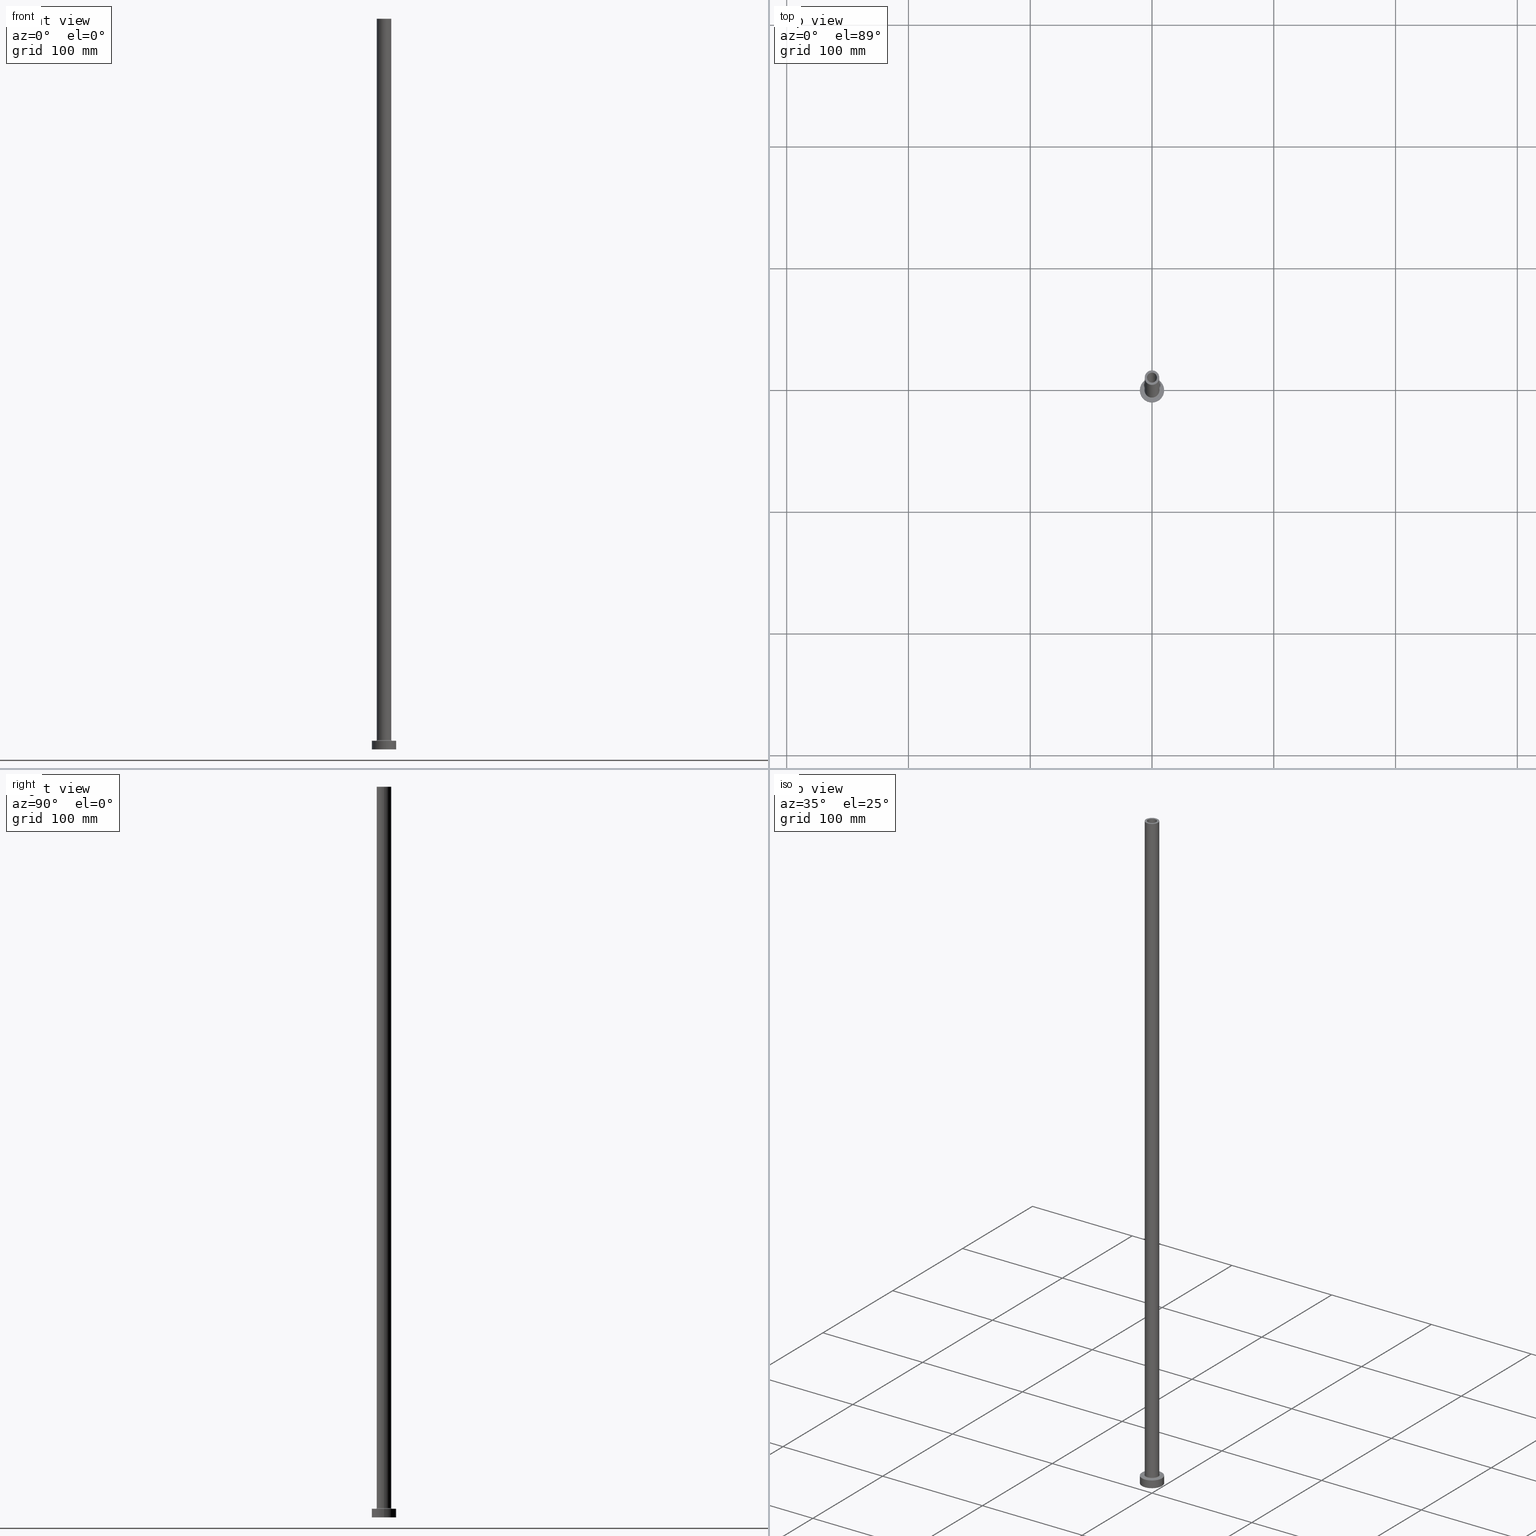
[diagram: canonical four-view strip — front | top / right | iso, engineering-drawing reading convention]
A machine part, canonical four-view strip (front | top / right | iso — engineering-drawing reading convention). The complete STEP part file that produces these views, byte-faithful:
ISO-10303-21;
HEADER;
FILE_DESCRIPTION (( 'STEP AP203' ),
    '1' );
FILE_NAME ('ef7f.STEP',
    '2023-02-13T07:38:45',
    ( '' ),
    ( '' ),
    'SwSTEP 2.0',
    'SolidWorks 2019',
    '' );
FILE_SCHEMA (( 'CONFIG_CONTROL_DESIGN' ));
ENDSEC;

DATA;
#1 = VERTEX_POINT ( 'NONE', #70 ) ;
#2 = EDGE_LOOP ( 'NONE', ( #317, #254, #249, #282 ) ) ;
#3 = PERSON_AND_ORGANIZATION ( #419, #97 ) ;
#4 = ADVANCED_FACE ( 'NONE', ( #33, #148 ), #28, .T. ) ;
#5 = EDGE_CURVE ( 'NONE', #219, #421, #349, .T. ) ;
#6 = VERTEX_POINT ( 'NONE', #44 ) ;
#7 = CARTESIAN_POINT ( 'NONE',  ( 0.000000000000000000, 0.000000000000000000, 567.0208152801711776 ) ) ;
#8 = ORIENTED_EDGE ( 'NONE', *, *, #441, .T. ) ;
#9 = CIRCLE ( 'NONE', #418, 6.700000000000001066 ) ;
#10 = DIRECTION ( 'NONE',  ( 0.000000000000000000, 0.000000000000000000, -1.000000000000000000 ) ) ;
#11 = DIRECTION ( 'NONE',  ( -0.000000000000000000, -0.000000000000000000, -1.000000000000000000 ) ) ;
#12 = CARTESIAN_POINT ( 'NONE',  ( 0.000000000000000000, 0.000000000000000000, 7.700000000000040146 ) ) ;
#13 = CC_DESIGN_APPROVAL ( #210, ( #357 ) ) ;
#14 = AXIS2_PLACEMENT_3D ( 'NONE', #132, #453, #161 ) ;
#15 = CARTESIAN_POINT ( 'NONE',  ( 0.000000000000000000, 0.000000000000000000, 7.000000000000000000 ) ) ;
#16 = CARTESIAN_POINT ( 'NONE',  ( -10.00000000000000000, 0.000000000000000000, 7.000000000000000000 ) ) ;
#17 = FACE_OUTER_BOUND ( 'NONE', #457, .T. ) ;
#18 = DIRECTION ( 'NONE',  ( -0.000000000000000000, -0.000000000000000000, -1.000000000000000000 ) ) ;
#19 = DIRECTION ( 'NONE',  ( 0.000000000000000000, 0.000000000000000000, 1.000000000000000000 ) ) ;
#20 = DIRECTION ( 'NONE',  ( 0.000000000000000000, 0.000000000000000000, 1.000000000000000000 ) ) ;
#21 = AXIS2_PLACEMENT_3D ( 'NONE', #456, #459, #78 ) ;
#22 = CYLINDRICAL_SURFACE ( 'NONE', #182, 4.099999999999999645 ) ;
#23 = ADVANCED_FACE ( 'NONE', ( #443 ), #295, .T. ) ;
#24 = CARTESIAN_POINT ( 'NONE',  ( 0.000000000000000000, 0.000000000000000000, 600.0000000000000000 ) ) ;
#25 = CARTESIAN_POINT ( 'NONE',  ( 0.000000000000000000, 0.000000000000000000, 7.000000000000000000 ) ) ;
#26 = ORIENTED_EDGE ( 'NONE', *, *, #407, .F. ) ;
#27 = ORIENTED_EDGE ( 'NONE', *, *, #156, .F. ) ;
#28 = PLANE ( 'NONE',  #40 ) ;
#29 = APPROVAL_PERSON_ORGANIZATION ( #197, #452, #50 ) ;
#30 = VERTEX_POINT ( 'NONE', #294 ) ;
#31 = AXIS2_PLACEMENT_3D ( 'NONE', #90, #412, #277 ) ;
#32 = CC_DESIGN_PERSON_AND_ORGANIZATION_ASSIGNMENT ( #3, #221, ( #357 ) ) ;
#33 = FACE_BOUND ( 'NONE', #227, .T. ) ;
#34 = APPROVAL_DATE_TIME ( #225, #210 ) ;
#35 = DIRECTION ( 'NONE',  ( 0.000000000000000000, 0.000000000000000000, 1.000000000000000000 ) ) ;
#36 = SECURITY_CLASSIFICATION_LEVEL ( 'unclassified' ) ;
#37 = EDGE_CURVE ( 'NONE', #387, #244, #315, .T. ) ;
#38 = CARTESIAN_POINT ( 'NONE',  ( 0.000000000000000000, 0.000000000000000000, 7.000000000000000000 ) ) ;
#39 = VERTEX_POINT ( 'NONE', #73 ) ;
#40 = AXIS2_PLACEMENT_3D ( 'NONE', #289, #319, #60 ) ;
#41 = CARTESIAN_POINT ( 'NONE',  ( -10.00000000000000000, 0.000000000000000000, 7.000000000000000000 ) ) ;
#42 = CARTESIAN_POINT ( 'NONE',  ( -4.250000000000000000, 0.000000000000000000, 0.000000000000000000 ) ) ;
#43 = FACE_BOUND ( 'NONE', #151, .T. ) ;
#44 = CARTESIAN_POINT ( 'NONE',  ( 6.000000000000000888, 7.347880794884120722E-16, 7.700000000000040146 ) ) ;
#45 = CARTESIAN_POINT ( 'NONE',  ( 6.000000000000000888, 7.347880794884120722E-16, 600.0000000000000000 ) ) ;
#46 = DIRECTION ( 'NONE',  ( 0.000000000000000000, 0.000000000000000000, -1.000000000000000000 ) ) ;
#47 = AXIS2_PLACEMENT_3D ( 'NONE', #159, #198, #88 ) ;
#48 = CC_DESIGN_DATE_AND_TIME_ASSIGNMENT ( #149, #93, ( #137 ) ) ;
#49 = APPLICATION_PROTOCOL_DEFINITION ( 'international standard', 'config_control_design', 1994, #215 ) ;
#50 = APPROVAL_ROLE ( '' ) ;
#51 = DIRECTION ( 'NONE',  ( 0.000000000000000000, 0.000000000000000000, -1.000000000000000000 ) ) ;
#52 = EDGE_CURVE ( 'NONE', #290, #39, #98, .T. ) ;
#53 = CARTESIAN_POINT ( 'NONE',  ( 0.000000000000000000, 0.000000000000000000, 600.0000000000000000 ) ) ;
#54 = DIRECTION ( 'NONE',  ( 0.000000000000000000, 0.000000000000000000, -1.000000000000000000 ) ) ;
#55 = EDGE_CURVE ( 'NONE', #421, #219, #190, .T. ) ;
#56 = CIRCLE ( 'NONE', #314, 4.099999999999999645 ) ;
#57 = DIRECTION ( 'NONE',  ( 0.000000000000000000, 0.000000000000000000, 1.000000000000000000 ) ) ;
#58 = DATE_AND_TIME ( #329, #181 ) ;
#59 = PLANE ( 'NONE',  #455 ) ;
#60 = DIRECTION ( 'NONE',  ( 1.000000000000000000, 0.000000000000000000, -0.000000000000000000 ) ) ;
#61 = VECTOR ( 'NONE', #10, 1000.000000000000000 ) ;
#62 = EDGE_LOOP ( 'NONE', ( #77, #360 ) ) ;
#63 = ORIENTED_EDGE ( 'NONE', *, *, #192, .T. ) ;
#64 = DIRECTION ( 'NONE',  ( -0.000000000000000000, -0.000000000000000000, -1.000000000000000000 ) ) ;
#65 = EDGE_LOOP ( 'NONE', ( #145, #220, #281, #287 ) ) ;
#66 = DIRECTION ( 'NONE',  ( -1.000000000000000000, 0.000000000000000000, 0.000000000000000000 ) ) ;
#67 = ORIENTED_EDGE ( 'NONE', *, *, #87, .T. ) ;
#68 = CC_DESIGN_PERSON_AND_ORGANIZATION_ASSIGNMENT ( #233, #85, ( #170 ) ) ;
#69 = VECTOR ( 'NONE', #345, 1000.000000000000000 ) ;
#70 = CARTESIAN_POINT ( 'NONE',  ( -4.099999999999999645, 0.000000000000000000, 600.0000000000000000 ) ) ;
#71 = AXIS2_PLACEMENT_3D ( 'NONE', #25, #270, #86 ) ;
#72 = APPROVAL_DATE_TIME ( #112, #452 ) ;
#73 = CARTESIAN_POINT ( 'NONE',  ( -4.250000000000000000, 0.000000000000000000, 554.9999999999998863 ) ) ;
#74 = ORIENTED_EDGE ( 'NONE', *, *, #101, .T. ) ;
#75 = APPROVAL_ROLE ( '' ) ;
#76 = DIRECTION ( 'NONE',  ( 0.000000000000000000, 0.000000000000000000, -1.000000000000000000 ) ) ;
#77 = ORIENTED_EDGE ( 'NONE', *, *, #262, .F. ) ;
#78 = DIRECTION ( 'NONE',  ( 1.000000000000000000, 0.000000000000000000, 0.000000000000000000 ) ) ;
#79 = VECTOR ( 'NONE', #238, 1000.000000000000000 ) ;
#80 = DIRECTION ( 'NONE',  ( 0.000000000000000000, 0.000000000000000000, -1.000000000000000000 ) ) ;
#81 =( LENGTH_UNIT ( ) NAMED_UNIT ( * ) SI_UNIT ( .MILLI., .METRE. ) );
#82 = DIRECTION ( 'NONE',  ( 1.000000000000000000, 0.000000000000000000, 0.000000000000000000 ) ) ;
#83 = PLANE ( 'NONE',  #47 ) ;
#84 = CARTESIAN_POINT ( 'NONE',  ( 0.000000000000000000, 0.000000000000000000, 600.0000000000000000 ) ) ;
#85 = PERSON_AND_ORGANIZATION_ROLE ( 'design_owner' ) ;
#86 = DIRECTION ( 'NONE',  ( 1.000000000000000000, 0.000000000000000000, 0.000000000000000000 ) ) ;
#87 = EDGE_CURVE ( 'NONE', #6, #423, #397, .T. ) ;
#88 = DIRECTION ( 'NONE',  ( 1.000000000000000000, 0.000000000000000000, -0.000000000000000000 ) ) ;
#89 = EDGE_CURVE ( 'NONE', #387, #6, #119, .T. ) ;
#90 = CARTESIAN_POINT ( 'NONE',  ( 0.000000000000000000, 0.000000000000000000, 0.000000000000000000 ) ) ;
#91 = CARTESIAN_POINT ( 'NONE',  ( 10.00000000000000000, 1.224646799147353256E-15, 7.000000000000000000 ) ) ;
#92 = DIRECTION ( 'NONE',  ( -0.000000000000000000, -0.000000000000000000, -1.000000000000000000 ) ) ;
#93 = DATE_TIME_ROLE ( 'creation_date' ) ;
#94 = AXIS2_PLACEMENT_3D ( 'NONE', #157, #115, #82 ) ;
#95 = DIRECTION ( 'NONE',  ( -1.000000000000000000, 0.000000000000000000, 0.000000000000000000 ) ) ;
#96 = ORIENTED_EDGE ( 'NONE', *, *, #205, .T. ) ;
#97 = ORGANIZATION ( 'NEUR�EN�', 'NEUR�EN�', '' ) ;
#98 = CIRCLE ( 'NONE', #94, 4.250000000000000000 ) ;
#99 = ORIENTED_EDGE ( 'NONE', *, *, #222, .T. ) ;
#100 = CARTESIAN_POINT ( 'NONE',  ( 0.000000000000000000, 0.000000000000000000, 600.0000000000000000 ) ) ;
#101 = EDGE_CURVE ( 'NONE', #436, #366, #337, .T. ) ;
#102 = ORIENTED_EDGE ( 'NONE', *, *, #304, .T. ) ;
#103 = EDGE_LOOP ( 'NONE', ( #27, #138 ) ) ;
#104 = PERSON_AND_ORGANIZATION ( #419, #97 ) ;
#105 = ORIENTED_EDGE ( 'NONE', *, *, #246, .T. ) ;
#106 = ORIENTED_EDGE ( 'NONE', *, *, #37, .T. ) ;
#107 = APPROVAL_STATUS ( 'not_yet_approved' ) ;
#108 = VECTOR ( 'NONE', #447, 1000.000000000000000 ) ;
#109 = CARTESIAN_POINT ( 'NONE',  ( -4.099999999999999645, 0.000000000000000000, 600.0000000000000000 ) ) ;
#110 = CIRCLE ( 'NONE', #388, 6.000000000000000888 ) ;
#111 = ORIENTED_EDGE ( 'NONE', *, *, #268, .T. ) ;
#112 = DATE_AND_TIME ( #396, #163 ) ;
#113 = DIRECTION ( 'NONE',  ( 1.000000000000000000, 0.000000000000000000, 0.000000000000000000 ) ) ;
#114 = CARTESIAN_POINT ( 'NONE',  ( 0.000000000000000000, 0.000000000000000000, 600.0000000000000000 ) ) ;
#115 = DIRECTION ( 'NONE',  ( 0.000000000000000000, 0.000000000000000000, 1.000000000000000000 ) ) ;
#116 = CIRCLE ( 'NONE', #179, 6.000000000000000888 ) ;
#117 = CARTESIAN_POINT ( 'NONE',  ( 0.000000000000000000, 0.000000000000000000, 554.9999999999998863 ) ) ;
#118 = APPROVAL_PERSON_ORGANIZATION ( #429, #340, #326 ) ;
#119 = CIRCLE ( 'NONE', #257, 6.000000000000000888 ) ;
#120 = DIRECTION ( 'NONE',  ( 1.224646799147353207E-16, 1.000000000000000000, -0.000000000000000000 ) ) ;
#121 = CC_DESIGN_PERSON_AND_ORGANIZATION_ASSIGNMENT ( #104, #259, ( #137 ) ) ;
#122 = DIRECTION ( 'NONE',  ( 1.000000000000000000, 0.000000000000000000, 0.000000000000000000 ) ) ;
#123 = CYLINDRICAL_SURFACE ( 'NONE', #415, 10.00000000000000000 ) ;
#124 = DIRECTION ( 'NONE',  ( 0.000000000000000000, 0.000000000000000000, 1.000000000000000000 ) ) ;
#125 = CARTESIAN_POINT ( 'NONE',  ( 4.099999999999999645, 5.021051876504147385E-16, 600.0000000000000000 ) ) ;
#126 =( GEOMETRIC_REPRESENTATION_CONTEXT ( 3 ) GLOBAL_UNCERTAINTY_ASSIGNED_CONTEXT ( ( #174 ) ) GLOBAL_UNIT_ASSIGNED_CONTEXT ( ( #81, #203, #164 ) ) REPRESENTATION_CONTEXT ( 'NONE', 'WORKASPACE' ) );
#127 = AXIS2_PLACEMENT_3D ( 'NONE', #38, #19, #381 ) ;
#128 = PRODUCT_RELATED_PRODUCT_CATEGORY ( 'detail', '', ( #170 ) ) ;
#129 = DIRECTION ( 'NONE',  ( 1.000000000000000000, 0.000000000000000000, 0.000000000000000000 ) ) ;
#130 = CARTESIAN_POINT ( 'NONE',  ( 4.250000000000000000, 5.204748896376250699E-16, 554.9999999999998863 ) ) ;
#131 = CARTESIAN_POINT ( 'NONE',  ( 0.000000000000000000, 0.000000000000000000, 0.000000000000000000 ) ) ;
#132 = CARTESIAN_POINT ( 'NONE',  ( 0.000000000000000000, 0.000000000000000000, 0.000000000000000000 ) ) ;
#133 = CARTESIAN_POINT ( 'NONE',  ( 6.700000000000001066, 0.000000000000000000, 7.000000000000020428 ) ) ;
#134 = DIRECTION ( 'NONE',  ( 0.000000000000000000, 0.000000000000000000, 1.000000000000000000 ) ) ;
#135 = AXIS2_PLACEMENT_3D ( 'NONE', #266, #35, #292 ) ;
#136 = DIRECTION ( 'NONE',  ( 0.000000000000000000, 0.000000000000000000, 1.000000000000000000 ) ) ;
#137 = PRODUCT_DEFINITION ( 'NEZN�M�', '', #416, #391 ) ;
#138 = ORIENTED_EDGE ( 'NONE', *, *, #192, .F. ) ;
#139 = ORIENTED_EDGE ( 'NONE', *, *, #52, .F. ) ;
#140 = ORIENTED_EDGE ( 'NONE', *, *, #222, .F. ) ;
#141 = CC_DESIGN_APPROVAL ( #452, ( #137 ) ) ;
#142 = AXIS2_PLACEMENT_3D ( 'NONE', #100, #352, #437 ) ;
#143 = ADVANCED_FACE ( 'NONE', ( #368 ), #369, .F. ) ;
#144 = CIRCLE ( 'NONE', #322, 10.00000000000000000 ) ;
#145 = ORIENTED_EDGE ( 'NONE', *, *, #264, .F. ) ;
#146 = EDGE_LOOP ( 'NONE', ( #427, #106, #207, #355 ) ) ;
#147 = ORIENTED_EDGE ( 'NONE', *, *, #155, .F. ) ;
#148 = FACE_OUTER_BOUND ( 'NONE', #252, .T. ) ;
#149 = DATE_AND_TIME ( #291, #320 ) ;
#150 = AXIS2_PLACEMENT_3D ( 'NONE', #440, #332, #188 ) ;
#151 = EDGE_LOOP ( 'NONE', ( #176, #351 ) ) ;
#152 = CARTESIAN_POINT ( 'NONE',  ( 0.000000000000000000, 0.000000000000000000, 0.000000000000000000 ) ) ;
#153 = FACE_OUTER_BOUND ( 'NONE', #146, .T. ) ;
#154 = ADVANCED_FACE ( 'NONE', ( #226 ), #260, .T. ) ;
#155 = EDGE_CURVE ( 'NONE', #1, #219, #373, .T. ) ;
#156 = EDGE_CURVE ( 'NONE', #30, #213, #283, .T. ) ;
#157 = CARTESIAN_POINT ( 'NONE',  ( 0.000000000000000000, 0.000000000000000000, 554.9999999999998863 ) ) ;
#158 = VECTOR ( 'NONE', #51, 1000.000000000000000 ) ;
#159 = CARTESIAN_POINT ( 'NONE',  ( 0.000000000000000000, 0.000000000000000000, 554.9999999999998863 ) ) ;
#160 = DIRECTION ( 'NONE',  ( 1.000000000000000000, 0.000000000000000000, 0.000000000000000000 ) ) ;
#161 = DIRECTION ( 'NONE',  ( 1.000000000000000000, 0.000000000000000000, 0.000000000000000000 ) ) ;
#162 = CARTESIAN_POINT ( 'NONE',  ( 0.000000000000000000, 0.000000000000000000, 7.700000000000040146 ) ) ;
#163 = LOCAL_TIME ( 8, 38, 45.00000000000000000, #448 ) ;
#164 =( NAMED_UNIT ( * ) SI_UNIT ( $, .STERADIAN. ) SOLID_ANGLE_UNIT ( ) );
#165 = CARTESIAN_POINT ( 'NONE',  ( 0.000000000000000000, 0.000000000000000000, 600.0000000000000000 ) ) ;
#166 = APPLICATION_CONTEXT ( 'configuration controlled 3d designs of mechanical parts and assemblies' ) ;
#167 = LINE ( 'NONE', #16, #431 ) ;
#168 = DIRECTION ( 'NONE',  ( 0.000000000000000000, 0.000000000000000000, 1.000000000000000000 ) ) ;
#169 = CLOSED_SHELL ( 'NONE', ( #228, #143, #208, #154, #323, #23, #4, #298, #275, #354, #253, #240, #370, #306 ) ) ;
#170 = PRODUCT ( 'ef7f', 'ef7f', '', ( #451 ) ) ;
#171 = VERTEX_POINT ( 'NONE', #42 ) ;
#172 = CARTESIAN_POINT ( 'NONE',  ( 0.000000000000000000, 0.000000000000000000, 7.000000000000000000 ) ) ;
#173 = ORIENTED_EDGE ( 'NONE', *, *, #384, .T. ) ;
#174 = UNCERTAINTY_MEASURE_WITH_UNIT (LENGTH_MEASURE( 1.000000000000000082E-05 ), #81, 'distance_accuracy_value', 'NONE');
#175 = EDGE_CURVE ( 'NONE', #39, #171, #362, .T. ) ;
#176 = ORIENTED_EDGE ( 'NONE', *, *, #5, .T. ) ;
#177 = PLANE ( 'NONE',  #454 ) ;
#178 = ORIENTED_EDGE ( 'NONE', *, *, #346, .F. ) ;
#179 = AXIS2_PLACEMENT_3D ( 'NONE', #24, #299, #309 ) ;
#180 = COORDINATED_UNIVERSAL_TIME_OFFSET ( 1, 0, .AHEAD. ) ;
#181 = LOCAL_TIME ( 8, 38, 45.00000000000000000, #312 ) ;
#182 = AXIS2_PLACEMENT_3D ( 'NONE', #165, #54, #414 ) ;
#183 = EDGE_LOOP ( 'NONE', ( #140, #173, #63, #284 ) ) ;
#184 = EDGE_LOOP ( 'NONE', ( #363, #428, #394, #147 ) ) ;
#185 = VERTEX_POINT ( 'NONE', #231 ) ;
#186 = SHAPE_DEFINITION_REPRESENTATION ( #350, #446 ) ;
#187 = CC_DESIGN_DATE_AND_TIME_ASSIGNMENT ( #426, #461, ( #357 ) ) ;
#188 = DIRECTION ( 'NONE',  ( -1.000000000000000000, 0.000000000000000000, 0.000000000000000000 ) ) ;
#189 = DIRECTION ( 'NONE',  ( 1.000000000000000000, 0.000000000000000000, 0.000000000000000000 ) ) ;
#190 = CIRCLE ( 'NONE', #413, 4.099999999999999645 ) ;
#191 = DIRECTION ( 'NONE',  ( 1.000000000000000000, 0.000000000000000000, 0.000000000000000000 ) ) ;
#192 = EDGE_CURVE ( 'NONE', #213, #30, #144, .T. ) ;
#193 = DIRECTION ( 'NONE',  ( 0.000000000000000000, 0.000000000000000000, 1.000000000000000000 ) ) ;
#194 = CARTESIAN_POINT ( 'NONE',  ( 0.000000000000000000, 0.000000000000000000, 554.9999999999998863 ) ) ;
#195 = CARTESIAN_POINT ( 'NONE',  ( 0.000000000000000000, 0.000000000000000000, 0.000000000000000000 ) ) ;
#196 = CIRCLE ( 'NONE', #14, 4.250000000000000000 ) ;
#197 = PERSON_AND_ORGANIZATION ( #419, #97 ) ;
#198 = DIRECTION ( 'NONE',  ( 0.000000000000000000, 0.000000000000000000, 1.000000000000000000 ) ) ;
#199 = DIRECTION ( 'NONE',  ( 1.000000000000000000, 0.000000000000000000, -0.000000000000000000 ) ) ;
#200 = DIRECTION ( 'NONE',  ( 1.000000000000000000, 0.000000000000000000, 0.000000000000000000 ) ) ;
#201 = DIRECTION ( 'NONE',  ( 1.000000000000000000, 0.000000000000000000, 0.000000000000000000 ) ) ;
#202 = AXIS2_PLACEMENT_3D ( 'NONE', #297, #223, #331 ) ;
#203 =( NAMED_UNIT ( * ) PLANE_ANGLE_UNIT ( ) SI_UNIT ( $, .RADIAN. ) );
#204 = FACE_OUTER_BOUND ( 'NONE', #103, .T. ) ;
#205 = EDGE_CURVE ( 'NONE', #423, #244, #405, .T. ) ;
#206 = CARTESIAN_POINT ( 'NONE',  ( -6.000000000000000888, 0.000000000000000000, 600.0000000000000000 ) ) ;
#207 = ORIENTED_EDGE ( 'NONE', *, *, #205, .F. ) ;
#208 = ADVANCED_FACE ( 'NONE', ( #153 ), #267, .F. ) ;
#209 = TOROIDAL_SURFACE ( 'NONE', #241, 6.700000000000001066, 0.6999999999999999556 ) ;
#210 = APPROVAL ( #344, 'NEUR�EN�' ) ;
#211 = ORIENTED_EDGE ( 'NONE', *, *, #89, .T. ) ;
#212 = VERTEX_POINT ( 'NONE', #365 ) ;
#213 = VERTEX_POINT ( 'NONE', #398 ) ;
#214 = CALENDAR_DATE ( 2023, 13, 2 ) ;
#215 = APPLICATION_CONTEXT ( 'configuration controlled 3d designs of mechanical parts and assemblies' ) ;
#216 = EDGE_LOOP ( 'NONE', ( #224, #139 ) ) ;
#217 = CC_DESIGN_APPROVAL ( #340, ( #416 ) ) ;
#218 = AXIS2_PLACEMENT_3D ( 'NONE', #272, #383, #235 ) ;
#219 = VERTEX_POINT ( 'NONE', #401 ) ;
#220 = ORIENTED_EDGE ( 'NONE', *, *, #346, .T. ) ;
#221 = PERSON_AND_ORGANIZATION_ROLE ( 'classification_officer' ) ;
#222 = EDGE_CURVE ( 'NONE', #430, #353, #330, .T. ) ;
#223 = DIRECTION ( 'NONE',  ( -0.000000000000000000, -0.000000000000000000, -1.000000000000000000 ) ) ;
#224 = ORIENTED_EDGE ( 'NONE', *, *, #441, .F. ) ;
#225 = DATE_AND_TIME ( #393, #265 ) ;
#226 = FACE_OUTER_BOUND ( 'NONE', #318, .T. ) ;
#227 = EDGE_LOOP ( 'NONE', ( #96, #111 ) ) ;
#228 = ADVANCED_FACE ( 'NONE', ( #339 ), #22, .F. ) ;
#229 = DIRECTION ( 'NONE',  ( 1.000000000000000000, 0.000000000000000000, 0.000000000000000000 ) ) ;
#230 = VECTOR ( 'NONE', #46, 1000.000000000000000 ) ;
#231 = CARTESIAN_POINT ( 'NONE',  ( 4.099999999999999645, 5.021051876504147385E-16, 600.0000000000000000 ) ) ;
#232 = DIRECTION ( 'NONE',  ( 0.000000000000000000, -1.000000000000000000, 0.000000000000000000 ) ) ;
#233 = PERSON_AND_ORGANIZATION ( #419, #97 ) ;
#234 = CIRCLE ( 'NONE', #347, 4.250000000000000000 ) ;
#235 = DIRECTION ( 'NONE',  ( -1.000000000000000000, 0.000000000000000000, 0.000000000000000000 ) ) ;
#236 = CARTESIAN_POINT ( 'NONE',  ( -6.700000000000001066, 8.205133554287267548E-16, 7.000000000000020428 ) ) ;
#237 = DIRECTION ( 'NONE',  ( 0.000000000000000000, 0.000000000000000000, -1.000000000000000000 ) ) ;
#238 = DIRECTION ( 'NONE',  ( -0.000000000000000000, -0.000000000000000000, -1.000000000000000000 ) ) ;
#239 = CARTESIAN_POINT ( 'NONE',  ( 0.000000000000000000, 0.000000000000000000, 0.000000000000000000 ) ) ;
#240 = ADVANCED_FACE ( 'NONE', ( #17 ), #449, .F. ) ;
#241 = AXIS2_PLACEMENT_3D ( 'NONE', #338, #134, #276 ) ;
#242 = APPROVAL_DATE_TIME ( #58, #340 ) ;
#243 = FACE_BOUND ( 'NONE', #62, .T. ) ;
#244 = VERTEX_POINT ( 'NONE', #236 ) ;
#245 = ORIENTED_EDGE ( 'NONE', *, *, #175, .T. ) ;
#246 = EDGE_CURVE ( 'NONE', #212, #171, #196, .T. ) ;
#247 = VECTOR ( 'NONE', #374, 1000.000000000000000 ) ;
#248 = ORIENTED_EDGE ( 'NONE', *, *, #37, .F. ) ;
#249 = ORIENTED_EDGE ( 'NONE', *, *, #432, .T. ) ;
#250 = ORIENTED_EDGE ( 'NONE', *, *, #311, .T. ) ;
#251 = PERSON_AND_ORGANIZATION ( #419, #97 ) ;
#252 = EDGE_LOOP ( 'NONE', ( #358, #99 ) ) ;
#253 = ADVANCED_FACE ( 'NONE', ( #377 ), #209, .F. ) ;
#254 = ORIENTED_EDGE ( 'NONE', *, *, #286, .F. ) ;
#255 = AXIS2_PLACEMENT_3D ( 'NONE', #84, #237, #379 ) ;
#256 = PERSON_AND_ORGANIZATION_ROLE ( 'creator' ) ;
#257 = AXIS2_PLACEMENT_3D ( 'NONE', #333, #403, #229 ) ;
#258 = EDGE_LOOP ( 'NONE', ( #328, #74 ) ) ;
#259 = PERSON_AND_ORGANIZATION_ROLE ( 'creator' ) ;
#260 = CYLINDRICAL_SURFACE ( 'NONE', #202, 6.000000000000000888 ) ;
#261 = ORIENTED_EDGE ( 'NONE', *, *, #101, .F. ) ;
#262 = EDGE_CURVE ( 'NONE', #171, #212, #434, .T. ) ;
#263 = CARTESIAN_POINT ( 'NONE',  ( -6.700000000000001066, 8.205133554287267548E-16, 7.700000000000040146 ) ) ;
#264 = EDGE_CURVE ( 'NONE', #185, #421, #308, .T. ) ;
#265 = LOCAL_TIME ( 8, 38, 45.00000000000000000, #361 ) ;
#266 = CARTESIAN_POINT ( 'NONE',  ( 0.000000000000000000, 0.000000000000000000, 600.0000000000000000 ) ) ;
#267 = TOROIDAL_SURFACE ( 'NONE', #382, 6.700000000000001066, 0.6999999999999999556 ) ;
#268 = EDGE_CURVE ( 'NONE', #244, #423, #9, .T. ) ;
#269 = DIRECTION ( 'NONE',  ( -1.000000000000000000, 1.224646799147353454E-16, 0.000000000000000000 ) ) ;
#270 = DIRECTION ( 'NONE',  ( 0.000000000000000000, 0.000000000000000000, 1.000000000000000000 ) ) ;
#271 = CC_DESIGN_PERSON_AND_ORGANIZATION_ASSIGNMENT ( #364, #400, ( #416 ) ) ;
#272 = CARTESIAN_POINT ( 'NONE',  ( 0.000000000000000000, 0.000000000000000000, 600.0000000000000000 ) ) ;
#273 = CYLINDRICAL_SURFACE ( 'NONE', #255, 4.099999999999999645 ) ;
#274 = DIRECTION ( 'NONE',  ( 0.000000000000000000, 0.000000000000000000, 1.000000000000000000 ) ) ;
#275 = ADVANCED_FACE ( 'NONE', ( #341 ), #410, .T. ) ;
#276 = DIRECTION ( 'NONE',  ( 1.000000000000000000, 0.000000000000000000, 0.000000000000000000 ) ) ;
#277 = DIRECTION ( 'NONE',  ( 1.000000000000000000, 0.000000000000000000, 0.000000000000000000 ) ) ;
#278 = CIRCLE ( 'NONE', #71, 10.00000000000000000 ) ;
#279 = FACE_BOUND ( 'NONE', #288, .T. ) ;
#280 = ORIENTED_EDGE ( 'NONE', *, *, #262, .T. ) ;
#281 = ORIENTED_EDGE ( 'NONE', *, *, #155, .T. ) ;
#282 = ORIENTED_EDGE ( 'NONE', *, *, #156, .T. ) ;
#283 = CIRCLE ( 'NONE', #375, 10.00000000000000000 ) ;
#284 = ORIENTED_EDGE ( 'NONE', *, *, #432, .F. ) ;
#285 = PERSON_AND_ORGANIZATION ( #419, #97 ) ;
#286 = EDGE_CURVE ( 'NONE', #353, #430, #278, .T. ) ;
#287 = ORIENTED_EDGE ( 'NONE', *, *, #55, .F. ) ;
#288 = EDGE_LOOP ( 'NONE', ( #460, #178 ) ) ;
#289 = CARTESIAN_POINT ( 'NONE',  ( 0.000000000000000000, 0.000000000000000000, 7.000000000000000000 ) ) ;
#290 = VERTEX_POINT ( 'NONE', #130 ) ;
#291 = CALENDAR_DATE ( 2023, 13, 2 ) ;
#292 = DIRECTION ( 'NONE',  ( 1.000000000000000000, 0.000000000000000000, 0.000000000000000000 ) ) ;
#293 = DIRECTION ( 'NONE',  ( 1.000000000000000000, 0.000000000000000000, 0.000000000000000000 ) ) ;
#294 = CARTESIAN_POINT ( 'NONE',  ( -10.00000000000000000, 0.000000000000000000, 0.000000000000000000 ) ) ;
#295 = CYLINDRICAL_SURFACE ( 'NONE', #150, 10.00000000000000000 ) ;
#296 = CARTESIAN_POINT ( 'NONE',  ( 6.000000000000000888, 7.347880794884120722E-16, 600.0000000000000000 ) ) ;
#297 = CARTESIAN_POINT ( 'NONE',  ( 0.000000000000000000, 0.000000000000000000, 600.0000000000000000 ) ) ;
#298 = ADVANCED_FACE ( 'NONE', ( #243, #204 ), #59, .F. ) ;
#299 = DIRECTION ( 'NONE',  ( 0.000000000000000000, 0.000000000000000000, 1.000000000000000000 ) ) ;
#300 = CARTESIAN_POINT ( 'NONE',  ( 0.000000000000000000, 0.000000000000000000, 567.0208152801711776 ) ) ;
#301 = LINE ( 'NONE', #408, #247 ) ;
#302 = AXIS2_PLACEMENT_3D ( 'NONE', #131, #274, #129 ) ;
#303 = DIRECTION ( 'NONE',  ( 1.000000000000000000, 0.000000000000000000, 0.000000000000000000 ) ) ;
#304 = EDGE_CURVE ( 'NONE', #6, #387, #110, .T. ) ;
#305 = AXIS2_PLACEMENT_3D ( 'NONE', #263, #120, #269 ) ;
#306 = ADVANCED_FACE ( 'NONE', ( #343 ), #273, .F. ) ;
#307 = APPLICATION_PROTOCOL_DEFINITION ( 'international standard', 'config_control_design', 1994, #166 ) ;
#308 = LINE ( 'NONE', #125, #158 ) ;
#309 = DIRECTION ( 'NONE',  ( 1.000000000000000000, 0.000000000000000000, 0.000000000000000000 ) ) ;
#310 = DIRECTION ( 'NONE',  ( 0.000000000000000000, 0.000000000000000000, -1.000000000000000000 ) ) ;
#311 = EDGE_CURVE ( 'NONE', #366, #387, #417, .T. ) ;
#312 = COORDINATED_UNIVERSAL_TIME_OFFSET ( 1, 0, .AHEAD. ) ;
#313 = FACE_OUTER_BOUND ( 'NONE', #258, .T. ) ;
#314 = AXIS2_PLACEMENT_3D ( 'NONE', #53, #20, #200 ) ;
#315 = CIRCLE ( 'NONE', #305, 0.7000000000000000666 ) ;
#316 = ORIENTED_EDGE ( 'NONE', *, *, #407, .T. ) ;
#317 = ORIENTED_EDGE ( 'NONE', *, *, #384, .F. ) ;
#318 = EDGE_LOOP ( 'NONE', ( #261, #316, #102, #390 ) ) ;
#319 = DIRECTION ( 'NONE',  ( 0.000000000000000000, 0.000000000000000000, 1.000000000000000000 ) ) ;
#320 = LOCAL_TIME ( 8, 38, 45.00000000000000000, #180 ) ;
#321 = ORIENTED_EDGE ( 'NONE', *, *, #52, .T. ) ;
#322 = AXIS2_PLACEMENT_3D ( 'NONE', #195, #336, #191 ) ;
#323 = ADVANCED_FACE ( 'NONE', ( #445 ), #123, .T. ) ;
#324 = ORIENTED_EDGE ( 'NONE', *, *, #422, .T. ) ;
#325 = EDGE_LOOP ( 'NONE', ( #8, #324, #105, #348 ) ) ;
#326 = APPROVAL_ROLE ( '' ) ;
#327 = CARTESIAN_POINT ( 'NONE',  ( -4.250000000000000000, 0.000000000000000000, 567.0208152801711776 ) ) ;
#328 = ORIENTED_EDGE ( 'NONE', *, *, #439, .T. ) ;
#329 = CALENDAR_DATE ( 2023, 13, 2 ) ;
#330 = CIRCLE ( 'NONE', #127, 10.00000000000000000 ) ;
#331 = DIRECTION ( 'NONE',  ( -1.000000000000000000, 0.000000000000000000, 0.000000000000000000 ) ) ;
#332 = DIRECTION ( 'NONE',  ( -0.000000000000000000, -0.000000000000000000, -1.000000000000000000 ) ) ;
#333 = CARTESIAN_POINT ( 'NONE',  ( 0.000000000000000000, 0.000000000000000000, 7.700000000000040146 ) ) ;
#334 = CC_DESIGN_PERSON_AND_ORGANIZATION_ASSIGNMENT ( #285, #256, ( #416 ) ) ;
#335 = CARTESIAN_POINT ( 'NONE',  ( 4.099999999999999645, 5.021051876504147385E-16, 554.9999999999998863 ) ) ;
#336 = DIRECTION ( 'NONE',  ( 0.000000000000000000, 0.000000000000000000, 1.000000000000000000 ) ) ;
#337 = CIRCLE ( 'NONE', #135, 6.000000000000000888 ) ;
#338 = CARTESIAN_POINT ( 'NONE',  ( 0.000000000000000000, 0.000000000000000000, 7.700000000000040146 ) ) ;
#339 = FACE_OUTER_BOUND ( 'NONE', #184, .T. ) ;
#340 = APPROVAL ( #107, 'NEUR�EN�' ) ;
#341 = FACE_OUTER_BOUND ( 'NONE', #356, .T. ) ;
#342 = AXIS2_PLACEMENT_3D ( 'NONE', #7, #80, #438 ) ;
#343 = FACE_OUTER_BOUND ( 'NONE', #65, .T. ) ;
#344 = APPROVAL_STATUS ( 'not_yet_approved' ) ;
#345 = DIRECTION ( 'NONE',  ( -0.000000000000000000, -0.000000000000000000, -1.000000000000000000 ) ) ;
#346 = EDGE_CURVE ( 'NONE', #185, #1, #367, .T. ) ;
#347 = AXIS2_PLACEMENT_3D ( 'NONE', #194, #124, #122 ) ;
#348 = ORIENTED_EDGE ( 'NONE', *, *, #175, .F. ) ;
#349 = CIRCLE ( 'NONE', #21, 4.099999999999999645 ) ;
#350 = PRODUCT_DEFINITION_SHAPE ( 'NONE', 'NONE',  #137 ) ;
#351 = ORIENTED_EDGE ( 'NONE', *, *, #55, .T. ) ;
#352 = DIRECTION ( 'NONE',  ( 0.000000000000000000, 0.000000000000000000, 1.000000000000000000 ) ) ;
#353 = VERTEX_POINT ( 'NONE', #41 ) ;
#354 = ADVANCED_FACE ( 'NONE', ( #279, #313 ), #177, .T. ) ;
#355 = ORIENTED_EDGE ( 'NONE', *, *, #87, .F. ) ;
#356 = EDGE_LOOP ( 'NONE', ( #26, #425, #250, #211 ) ) ;
#357 = SECURITY_CLASSIFICATION ( '', '', #36 ) ;
#358 = ORIENTED_EDGE ( 'NONE', *, *, #286, .T. ) ;
#359 = AXIS2_PLACEMENT_3D ( 'NONE', #15, #11, #160 ) ;
#360 = ORIENTED_EDGE ( 'NONE', *, *, #246, .F. ) ;
#361 = COORDINATED_UNIVERSAL_TIME_OFFSET ( 1, 0, .AHEAD. ) ;
#362 = LINE ( 'NONE', #327, #61 ) ;
#363 = ORIENTED_EDGE ( 'NONE', *, *, #395, .T. ) ;
#364 = PERSON_AND_ORGANIZATION ( #419, #97 ) ;
#365 = CARTESIAN_POINT ( 'NONE',  ( 4.250000000000000000, 5.204748896376250699E-16, 0.000000000000000000 ) ) ;
#366 = VERTEX_POINT ( 'NONE', #420 ) ;
#367 = CIRCLE ( 'NONE', #142, 4.099999999999999645 ) ;
#368 = FACE_OUTER_BOUND ( 'NONE', #325, .T. ) ;
#369 = CYLINDRICAL_SURFACE ( 'NONE', #342, 4.250000000000000000 ) ;
#370 = ADVANCED_FACE ( 'NONE', ( #43, #371 ), #83, .F. ) ;
#371 = FACE_OUTER_BOUND ( 'NONE', #216, .T. ) ;
#372 = LINE ( 'NONE', #45, #108 ) ;
#373 = LINE ( 'NONE', #109, #230 ) ;
#374 = DIRECTION ( 'NONE',  ( 0.000000000000000000, 0.000000000000000000, -1.000000000000000000 ) ) ;
#375 = AXIS2_PLACEMENT_3D ( 'NONE', #152, #193, #293 ) ;
#376 = APPROVAL_STATUS ( 'not_yet_approved' ) ;
#377 = FACE_OUTER_BOUND ( 'NONE', #386, .T. ) ;
#378 = LINE ( 'NONE', #91, #79 ) ;
#379 = DIRECTION ( 'NONE',  ( -1.000000000000000000, 0.000000000000000000, 0.000000000000000000 ) ) ;
#380 = CC_DESIGN_SECURITY_CLASSIFICATION ( #357, ( #416 ) ) ;
#381 = DIRECTION ( 'NONE',  ( 1.000000000000000000, 0.000000000000000000, 0.000000000000000000 ) ) ;
#382 = AXIS2_PLACEMENT_3D ( 'NONE', #12, #435, #113 ) ;
#383 = DIRECTION ( 'NONE',  ( -0.000000000000000000, -0.000000000000000000, -1.000000000000000000 ) ) ;
#384 = EDGE_CURVE ( 'NONE', #430, #213, #378, .T. ) ;
#385 = DIRECTION ( 'NONE',  ( 1.000000000000000000, 0.000000000000000000, -0.000000000000000000 ) ) ;
#386 = EDGE_LOOP ( 'NONE', ( #248, #392, #67, #399 ) ) ;
#387 = VERTEX_POINT ( 'NONE', #411 ) ;
#388 = AXIS2_PLACEMENT_3D ( 'NONE', #162, #168, #303 ) ;
#389 = MANIFOLD_SOLID_BREP ( 'Odebrat vysunut�m4', #169 ) ;
#390 = ORIENTED_EDGE ( 'NONE', *, *, #311, .F. ) ;
#391 = DESIGN_CONTEXT ( 'detailed design', #215, 'design' ) ;
#392 = ORIENTED_EDGE ( 'NONE', *, *, #304, .F. ) ;
#393 = CALENDAR_DATE ( 2023, 13, 2 ) ;
#394 = ORIENTED_EDGE ( 'NONE', *, *, #5, .F. ) ;
#395 = EDGE_CURVE ( 'NONE', #1, #185, #56, .T. ) ;
#396 = CALENDAR_DATE ( 2023, 13, 2 ) ;
#397 = CIRCLE ( 'NONE', #424, 0.7000000000000000666 ) ;
#398 = CARTESIAN_POINT ( 'NONE',  ( 10.00000000000000000, 1.224646799147353256E-15, 0.000000000000000000 ) ) ;
#399 = ORIENTED_EDGE ( 'NONE', *, *, #268, .F. ) ;
#400 = PERSON_AND_ORGANIZATION_ROLE ( 'design_supplier' ) ;
#401 = CARTESIAN_POINT ( 'NONE',  ( -4.099999999999999645, 0.000000000000000000, 554.9999999999998863 ) ) ;
#402 = ORIENTED_EDGE ( 'NONE', *, *, #422, .F. ) ;
#403 = DIRECTION ( 'NONE',  ( 0.000000000000000000, 0.000000000000000000, 1.000000000000000000 ) ) ;
#404 = LOCAL_TIME ( 8, 38, 45.00000000000000000, #433 ) ;
#405 = CIRCLE ( 'NONE', #359, 6.700000000000001066 ) ;
#406 = DIRECTION ( 'NONE',  ( 0.000000000000000000, 0.000000000000000000, 1.000000000000000000 ) ) ;
#407 = EDGE_CURVE ( 'NONE', #436, #6, #372, .T. ) ;
#408 = CARTESIAN_POINT ( 'NONE',  ( 4.250000000000000000, 5.204748896376250699E-16, 567.0208152801711776 ) ) ;
#409 = CARTESIAN_POINT ( 'NONE',  ( 6.700000000000001066, 0.000000000000000000, 7.700000000000040146 ) ) ;
#410 = CYLINDRICAL_SURFACE ( 'NONE', #218, 6.000000000000000888 ) ;
#411 = CARTESIAN_POINT ( 'NONE',  ( -6.000000000000000888, 0.000000000000000000, 7.700000000000040146 ) ) ;
#412 = DIRECTION ( 'NONE',  ( -0.000000000000000000, -0.000000000000000000, -1.000000000000000000 ) ) ;
#413 = AXIS2_PLACEMENT_3D ( 'NONE', #117, #406, #189 ) ;
#414 = DIRECTION ( 'NONE',  ( -1.000000000000000000, 0.000000000000000000, 0.000000000000000000 ) ) ;
#415 = AXIS2_PLACEMENT_3D ( 'NONE', #172, #64, #66 ) ;
#416 = PRODUCT_DEFINITION_FORMATION_WITH_SPECIFIED_SOURCE ( 'LIBOVOLN�', '', #170, .NOT_KNOWN. ) ;
#417 = LINE ( 'NONE', #206, #69 ) ;
#418 = AXIS2_PLACEMENT_3D ( 'NONE', #450, #92, #201 ) ;
#419 = PERSON ( 'NEUR�EN�', 'NEUR�EN�', 'NEUR�EN�', ('NEUR�EN�'), ('NEUR�EN�'), ('NEUR�EN�') ) ;
#420 = CARTESIAN_POINT ( 'NONE',  ( -6.000000000000000888, 0.000000000000000000, 600.0000000000000000 ) ) ;
#421 = VERTEX_POINT ( 'NONE', #335 ) ;
#422 = EDGE_CURVE ( 'NONE', #290, #212, #301, .T. ) ;
#423 = VERTEX_POINT ( 'NONE', #133 ) ;
#424 = AXIS2_PLACEMENT_3D ( 'NONE', #409, #232, #76 ) ;
#425 = ORIENTED_EDGE ( 'NONE', *, *, #439, .F. ) ;
#426 = DATE_AND_TIME ( #214, #404 ) ;
#427 = ORIENTED_EDGE ( 'NONE', *, *, #89, .F. ) ;
#428 = ORIENTED_EDGE ( 'NONE', *, *, #264, .T. ) ;
#429 = PERSON_AND_ORGANIZATION ( #419, #97 ) ;
#430 = VERTEX_POINT ( 'NONE', #444 ) ;
#431 = VECTOR ( 'NONE', #18, 1000.000000000000000 ) ;
#432 = EDGE_CURVE ( 'NONE', #353, #30, #167, .T. ) ;
#433 = COORDINATED_UNIVERSAL_TIME_OFFSET ( 1, 0, .AHEAD. ) ;
#434 = CIRCLE ( 'NONE', #31, 4.250000000000000000 ) ;
#435 = DIRECTION ( 'NONE',  ( 0.000000000000000000, 0.000000000000000000, 1.000000000000000000 ) ) ;
#436 = VERTEX_POINT ( 'NONE', #296 ) ;
#437 = DIRECTION ( 'NONE',  ( 1.000000000000000000, 0.000000000000000000, 0.000000000000000000 ) ) ;
#438 = DIRECTION ( 'NONE',  ( -1.000000000000000000, 0.000000000000000000, 0.000000000000000000 ) ) ;
#439 = EDGE_CURVE ( 'NONE', #366, #436, #116, .T. ) ;
#440 = CARTESIAN_POINT ( 'NONE',  ( 0.000000000000000000, 0.000000000000000000, 7.000000000000000000 ) ) ;
#441 = EDGE_CURVE ( 'NONE', #39, #290, #234, .T. ) ;
#442 = AXIS2_PLACEMENT_3D ( 'NONE', #300, #310, #95 ) ;
#443 = FACE_OUTER_BOUND ( 'NONE', #2, .T. ) ;
#444 = CARTESIAN_POINT ( 'NONE',  ( 10.00000000000000000, 1.224646799147353256E-15, 7.000000000000000000 ) ) ;
#445 = FACE_OUTER_BOUND ( 'NONE', #183, .T. ) ;
#446 = ADVANCED_BREP_SHAPE_REPRESENTATION ( 'ef7f', ( #389, #302 ), #126 ) ;
#447 = DIRECTION ( 'NONE',  ( -0.000000000000000000, -0.000000000000000000, -1.000000000000000000 ) ) ;
#448 = COORDINATED_UNIVERSAL_TIME_OFFSET ( 1, 0, .AHEAD. ) ;
#449 = CYLINDRICAL_SURFACE ( 'NONE', #442, 4.250000000000000000 ) ;
#450 = CARTESIAN_POINT ( 'NONE',  ( 0.000000000000000000, 0.000000000000000000, 7.000000000000000000 ) ) ;
#451 = MECHANICAL_CONTEXT ( 'NONE', #166, 'mechanical' ) ;
#452 = APPROVAL ( #376, 'NEUR�EN�' ) ;
#453 = DIRECTION ( 'NONE',  ( -0.000000000000000000, -0.000000000000000000, -1.000000000000000000 ) ) ;
#454 = AXIS2_PLACEMENT_3D ( 'NONE', #114, #136, #385 ) ;
#455 = AXIS2_PLACEMENT_3D ( 'NONE', #239, #57, #199 ) ;
#456 = CARTESIAN_POINT ( 'NONE',  ( 0.000000000000000000, 0.000000000000000000, 554.9999999999998863 ) ) ;
#457 = EDGE_LOOP ( 'NONE', ( #402, #321, #245, #280 ) ) ;
#458 = APPROVAL_PERSON_ORGANIZATION ( #251, #210, #75 ) ;
#459 = DIRECTION ( 'NONE',  ( 0.000000000000000000, 0.000000000000000000, 1.000000000000000000 ) ) ;
#460 = ORIENTED_EDGE ( 'NONE', *, *, #395, .F. ) ;
#461 = DATE_TIME_ROLE ( 'classification_date' ) ;
ENDSEC;
END-ISO-10303-21;
